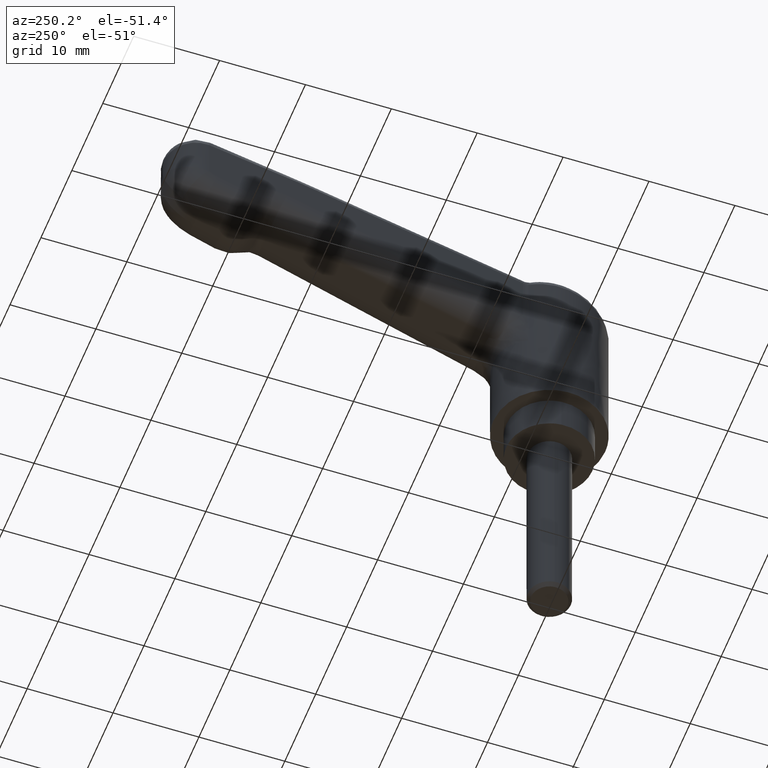
[diagram: clean part render]
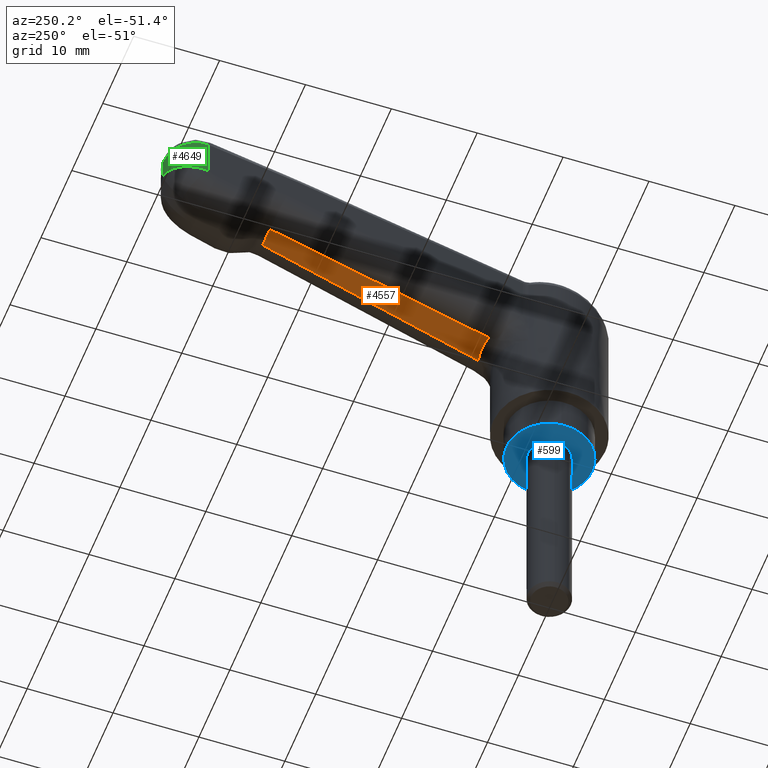
[diagram: same view with three faces highlighted in distinct colors, each labeled with its STEP entity id]
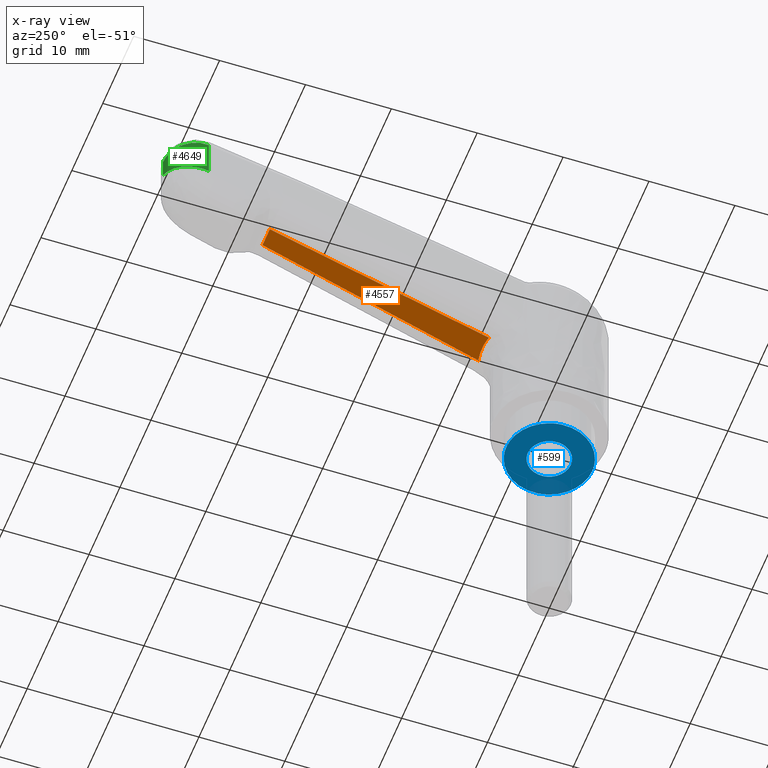
[diagram: x-ray of the same camera — body ghosted, the three highlighted faces saturated]
A machine part, auxiliary view with three faces highlighted in distinct colors.
The next image is the same camera in x-ray (body ghosted, the three faces saturated) — at least one of them is partly hidden behind the body in this view.
Their STEP definitions:

[orange] entity #4557 — the highlighted face is a freeform B-spline surface patch.
#2166=CARTESIAN_POINT('',(7.663890390378490,1.703646324529980,16.050264270958049));
#2167=VERTEX_POINT('',#2166);
#2225=CARTESIAN_POINT('',(32.967611560764503,1.185174163263914,24.950669955959750));
#2226=VERTEX_POINT('',#2225);
#2240=CARTESIAN_POINT('',(7.663890390378490,1.703646324529980,16.050264270958049));
#2241=CARTESIAN_POINT('',(32.967611560764503,1.185174163263914,24.950669955959750));
#2242=QUASI_UNIFORM_CURVE('',1,(#2240,#2241),.UNSPECIFIED.,.F.,.U.);
#2243=EDGE_CURVE('',#2167,#2226,#2242,.T.);
#3010=CARTESIAN_POINT('',(32.967611560764503,-1.185174163264024,24.950669955959750));
#3011=VERTEX_POINT('',#3010);
#3071=CARTESIAN_POINT('',(7.663890390378520,-1.703646324529835,16.050264270958049));
#3072=VERTEX_POINT('',#3071);
#3086=CARTESIAN_POINT('',(32.967611560764503,-1.185174163264024,24.950669955959750));
#3087=CARTESIAN_POINT('',(7.663890390378520,-1.703646324529835,16.050264270958049));
#3088=QUASI_UNIFORM_CURVE('',1,(#3086,#3087),.UNSPECIFIED.,.F.,.U.);
#3089=EDGE_CURVE('',#3011,#3072,#3088,.T.);
#3293=CARTESIAN_POINT('',(32.967611560764503,1.185174163263914,24.950669955959750));
#3294=CARTESIAN_POINT('',(32.967611560764503,-1.185174163264024,24.950669955959750));
#3295=QUASI_UNIFORM_CURVE('',1,(#3293,#3294),.UNSPECIFIED.,.F.,.U.);
#3296=EDGE_CURVE('',#2226,#3011,#3295,.T.);
#3899=CARTESIAN_POINT('',(7.663890390378509,-1.703646324529837,16.050264270958021));
#3900=CARTESIAN_POINT('',(8.012422822868885,1.951564E-014,16.172858099061667));
#3901=CARTESIAN_POINT('',(7.663890390378490,1.703646324529980,16.050264270958049));
#3909=(BOUNDED_CURVE()B_SPLINE_CURVE(2,(#3899,#3900,#3901),.UNSPECIFIED.,.F.,.U.)CURVE()GEOMETRIC_REPRESENTATION_ITEM()QUASI_UNIFORM_CURVE()RATIONAL_B_SPLINE_CURVE((1.0,0.979708234238197,1.0))REPRESENTATION_ITEM(''));
#3910=EDGE_CURVE('',#3072,#2167,#3909,.T.);
#4546=CARTESIAN_POINT('',(6.399969476558571,-1.873840585746379,15.605688992444410));
#4547=CARTESIAN_POINT('',(34.231534963146302,-1.873840585746379,25.395246109807459));
#4548=CARTESIAN_POINT('',(6.399969476558571,1.873840677137234,15.605688992444410));
#4549=CARTESIAN_POINT('',(34.231534963146302,1.873840677137234,25.395246109807459));
#4550=B_SPLINE_SURFACE_WITH_KNOTS('',1,1,((#4546,#4548),(#4547,#4549)),.UNSPECIFIED.,.F.,.F.,.U.,(2,2),(2,2),(0.0,29.503075534396999),(0.0,3.747681262883613),.UNSPECIFIED.);
#4551=ORIENTED_EDGE('',*,*,#3910,.T.);
#4552=ORIENTED_EDGE('',*,*,#2243,.T.);
#4553=ORIENTED_EDGE('',*,*,#3296,.T.);
#4554=ORIENTED_EDGE('',*,*,#3089,.T.);
#4555=EDGE_LOOP('',(#4551,#4552,#4553,#4554));
#4556=FACE_OUTER_BOUND('',#4555,.T.);
#4557=ADVANCED_FACE('',(#4556),#4550,.F.);

[blue] entity #599 — the highlighted face is a freeform B-spline surface patch.
#285=CARTESIAN_POINT('',(-0.152621348980190,-2.495336996045918,0.0));
#286=VERTEX_POINT('',#285);
#292=CARTESIAN_POINT('',(-2.500000000000000,0.0,0.0));
#293=VERTEX_POINT('',#292);
#294=CARTESIAN_POINT('',(-2.500000000000000,0.0,0.0));
#295=CARTESIAN_POINT('',(-2.500000000000000,-2.351765166994094,0.0));
#296=CARTESIAN_POINT('',(-0.152621348980190,-2.495336996045918,0.0));
#304=(BOUNDED_CURVE()B_SPLINE_CURVE(2,(#294,#295,#296),.UNSPECIFIED.,.F.,.U.)B_SPLINE_CURVE_WITH_KNOTS((3,3),(0.500000000000000,0.739332962222185),.UNSPECIFIED.)CURVE()GEOMETRIC_REPRESENTATION_ITEM()RATIONAL_B_SPLINE_CURVE((1.0,0.719603993306343,0.976072041630803))REPRESENTATION_ITEM(''));
#305=EDGE_CURVE('',#293,#286,#304,.T.);
#307=CARTESIAN_POINT('',(0.295085586690003,2.482523815903448,0.0));
#308=VERTEX_POINT('',#307);
#309=CARTESIAN_POINT('',(0.295085586690003,2.482523815903447,0.0));
#310=CARTESIAN_POINT('',(0.148060299178390,2.500000000000000,0.0));
#311=CARTESIAN_POINT('',(0.0,2.500000000000000,0.0));
#312=CARTESIAN_POINT('',(-2.500000000000000,2.500000000000000,0.0));
#313=CARTESIAN_POINT('',(-2.500000000000000,0.0,0.0));
#321=(BOUNDED_CURVE()B_SPLINE_CURVE(2,(#309,#310,#311,#312,#313),.UNSPECIFIED.,.F.,.U.)B_SPLINE_CURVE_WITH_KNOTS((3,2,3),(0.229562473509094,0.250000000000000,0.500000000000000),.UNSPECIFIED.)CURVE()GEOMETRIC_REPRESENTATION_ITEM()RATIONAL_B_SPLINE_CURVE((0.956026754175048,0.976055948325974,1.0,0.707106781186548,1.0))REPRESENTATION_ITEM(''));
#322=EDGE_CURVE('',#308,#293,#321,.T.);
#352=CARTESIAN_POINT('',(2.500000000000000,0.0,0.0));
#353=VERTEX_POINT('',#352);
#354=CARTESIAN_POINT('',(2.500000000000000,0.0,0.0));
#355=CARTESIAN_POINT('',(2.500000000000000,2.220436314791758,0.0));
#356=CARTESIAN_POINT('',(0.295085586690003,2.482523815903447,0.0));
#364=(BOUNDED_CURVE()B_SPLINE_CURVE(2,(#354,#355,#356),.UNSPECIFIED.,.F.,.U.)B_SPLINE_CURVE_WITH_KNOTS((3,3),(0.0,0.229562473509094),.UNSPECIFIED.)CURVE()GEOMETRIC_REPRESENTATION_ITEM()RATIONAL_B_SPLINE_CURVE((1.0,0.731050832860574,0.956026754175048))REPRESENTATION_ITEM(''));
#365=EDGE_CURVE('',#353,#308,#364,.T.);
#367=CARTESIAN_POINT('',(-0.152621348980190,-2.495336996045918,0.0));
#368=CARTESIAN_POINT('',(-0.076381908389921,-2.500000000000000,0.0));
#369=CARTESIAN_POINT('',(0.0,-2.500000000000000,0.0));
#370=CARTESIAN_POINT('',(2.500000000000000,-2.500000000000000,0.0));
#371=CARTESIAN_POINT('',(2.500000000000000,0.0,0.0));
#379=(BOUNDED_CURVE()B_SPLINE_CURVE(2,(#367,#368,#369,#370,#371),.UNSPECIFIED.,.F.,.U.)B_SPLINE_CURVE_WITH_KNOTS((3,2,3),(0.739332962222185,0.750000000000000,1.0),.UNSPECIFIED.)CURVE()GEOMETRIC_REPRESENTATION_ITEM()RATIONAL_B_SPLINE_CURVE((0.976072041630803,0.987502787880205,1.0,0.707106781186548,1.0))REPRESENTATION_ITEM(''));
#380=EDGE_CURVE('',#286,#353,#379,.T.);
#406=CARTESIAN_POINT('',(-5.0,0.0,0.0));
#407=VERTEX_POINT('',#406);
#408=CARTESIAN_POINT('',(-0.392295478703111,-4.984586668660612,-8.604228E-016));
#409=VERTEX_POINT('',#408);
#410=CARTESIAN_POINT('',(-5.0,0.0,0.0));
#411=CARTESIAN_POINT('',(-5.000000000000001,-4.621952458172197,0.0));
#412=CARTESIAN_POINT('',(-0.392295478703111,-4.984586668660612,-8.604228E-016));
#420=(BOUNDED_CURVE()B_SPLINE_CURVE(2,(#410,#411,#412),.UNSPECIFIED.,.F.,.U.)B_SPLINE_CURVE_WITH_KNOTS((3,3),(0.0,0.236331300628373),.UNSPECIFIED.)CURVE()GEOMETRIC_REPRESENTATION_ITEM()RATIONAL_B_SPLINE_CURVE((1.0,0.723120658610345,0.969723356162645))REPRESENTATION_ITEM(''));
#421=EDGE_CURVE('',#407,#409,#420,.T.);
#462=CARTESIAN_POINT('',(0.392295478703110,4.984586668660612,9.159340E-016));
#463=VERTEX_POINT('',#462);
#469=CARTESIAN_POINT('',(0.392295478703110,4.984586668660612,9.159340E-016));
#470=CARTESIAN_POINT('',(0.196450535102529,4.999999999999999,0.0));
#471=CARTESIAN_POINT('',(0.0,5.0,0.0));
#472=CARTESIAN_POINT('',(-5.000000000000001,5.000000000000001,0.0));
#473=CARTESIAN_POINT('',(-5.0,0.0,0.0));
#481=(BOUNDED_CURVE()B_SPLINE_CURVE(2,(#469,#470,#471,#472,#473),.UNSPECIFIED.,.F.,.U.)B_SPLINE_CURVE_WITH_KNOTS((3,2,3),(0.736331300628373,0.750000000000000,1.0),.UNSPECIFIED.)CURVE()GEOMETRIC_REPRESENTATION_ITEM()RATIONAL_B_SPLINE_CURVE((0.969723356162645,0.983986122576203,1.0,0.707106781186548,1.0))REPRESENTATION_ITEM(''));
#482=EDGE_CURVE('',#463,#407,#481,.T.);
#505=CARTESIAN_POINT('',(5.0,0.0,0.0));
#506=VERTEX_POINT('',#505);
#507=CARTESIAN_POINT('',(-0.392295478703111,-4.984586668660612,-8.604228E-016));
#508=CARTESIAN_POINT('',(-0.196450535102529,-5.000000000000001,0.0));
#509=CARTESIAN_POINT('',(0.0,-5.0,0.0));
#510=CARTESIAN_POINT('',(5.000000000000001,-5.000000000000001,0.0));
#511=CARTESIAN_POINT('',(5.0,0.0,0.0));
#519=(BOUNDED_CURVE()B_SPLINE_CURVE(2,(#507,#508,#509,#510,#511),.UNSPECIFIED.,.F.,.U.)B_SPLINE_CURVE_WITH_KNOTS((3,2,3),(0.236331300628373,0.250000000000000,0.500000000000000),.UNSPECIFIED.)CURVE()GEOMETRIC_REPRESENTATION_ITEM()RATIONAL_B_SPLINE_CURVE((0.969723356162645,0.983986122576203,1.0,0.707106781186548,1.0))REPRESENTATION_ITEM(''));
#520=EDGE_CURVE('',#409,#506,#519,.T.);
#522=CARTESIAN_POINT('',(5.0,0.0,0.0));
#523=CARTESIAN_POINT('',(5.000000000000001,4.621952458172169,0.0));
#524=CARTESIAN_POINT('',(0.392295478703110,4.984586668660612,9.159340E-016));
#532=(BOUNDED_CURVE()B_SPLINE_CURVE(2,(#522,#523,#524),.UNSPECIFIED.,.F.,.U.)B_SPLINE_CURVE_WITH_KNOTS((3,3),(0.500000000000000,0.736331300628372),.UNSPECIFIED.)CURVE()GEOMETRIC_REPRESENTATION_ITEM()RATIONAL_B_SPLINE_CURVE((1.0,0.723120658610346,0.969723356162643))REPRESENTATION_ITEM(''));
#533=EDGE_CURVE('',#506,#463,#532,.T.);
#582=CARTESIAN_POINT('',(-5.499499980618060,5.497973763634227,0.0));
#583=CARTESIAN_POINT('',(5.499500248838961,5.497973763634227,0.0));
#584=CARTESIAN_POINT('',(-5.499499980618060,-5.497974031855129,0.0));
#585=CARTESIAN_POINT('',(5.499500248838961,-5.497974031855129,0.0));
#586=B_SPLINE_SURFACE_WITH_KNOTS('',1,1,((#582,#584),(#583,#585)),.UNSPECIFIED.,.F.,.F.,.U.,(2,2),(2,2),(0.0,10.999000229457019),(0.0,10.995947795489361),.UNSPECIFIED.);
#587=ORIENTED_EDGE('',*,*,#482,.F.);
#588=ORIENTED_EDGE('',*,*,#533,.F.);
#589=ORIENTED_EDGE('',*,*,#520,.F.);
#590=ORIENTED_EDGE('',*,*,#421,.F.);
#591=EDGE_LOOP('',(#587,#588,#589,#590));
#592=FACE_OUTER_BOUND('',#591,.T.);
#593=ORIENTED_EDGE('',*,*,#305,.T.);
#594=ORIENTED_EDGE('',*,*,#380,.T.);
#595=ORIENTED_EDGE('',*,*,#365,.T.);
#596=ORIENTED_EDGE('',*,*,#322,.T.);
#597=EDGE_LOOP('',(#593,#594,#595,#596));
#598=FACE_BOUND('',#597,.T.);
#599=ADVANCED_FACE('',(#592,#598),#586,.T.);

[green] entity #4649 — the highlighted face is a freeform B-spline surface patch.
#2527=CARTESIAN_POINT('',(41.081942628878487,3.999144946134395,28.444855264174748));
#2528=VERTEX_POINT('',#2527);
#2624=CARTESIAN_POINT('',(45.0,-0.000015641485440,30.662410843262951));
#2625=VERTEX_POINT('',#2624);
#2626=CARTESIAN_POINT('',(45.0,-0.000015641485440,30.662410843262951));
#2627=CARTESIAN_POINT('',(44.999999944226182,0.031270363513726,30.648863676924631));
#2628=CARTESIAN_POINT('',(44.999625191813649,0.063235898334178,30.635022291434819));
#2629=CARTESIAN_POINT('',(44.998121765757482,0.126570559447724,30.607593884920650));
#2630=CARTESIAN_POINT('',(44.994739310967070,0.221487009446116,30.566482515123280));
#2631=CARTESIAN_POINT('',(44.987987991729263,0.316130902287121,30.525454482206840));
#2632=CARTESIAN_POINT('',(44.970002204119112,0.505039079579945,30.443470395197799));
#2633=CARTESIAN_POINT('',(44.952011920446822,0.630631082778202,30.388841235473489));
#2634=CARTESIAN_POINT('',(44.904059008516072,0.880003725738597,30.279870821649791));
#2635=CARTESIAN_POINT('',(44.874214354359211,1.003256512487470,30.225760667869281));
#2636=CARTESIAN_POINT('',(44.820675478685231,1.185923343119937,30.144998604780259));
#2637=CARTESIAN_POINT('',(44.801364992810328,1.246443018129408,30.118145245422010));
#2638=CARTESIAN_POINT('',(44.759793840894112,1.366726586173039,30.064547555641980));
#2639=CARTESIAN_POINT('',(44.737512017772588,1.426528994151118,30.037785460575751));
#2640=CARTESIAN_POINT('',(44.619464600570190,1.721645473847278,29.905065341150308));
#2641=CARTESIAN_POINT('',(44.503453970181802,1.946912273030040,29.801670208677340));
#2642=CARTESIAN_POINT('',(44.297263637606541,2.268071049019407,29.649449500367862));
#2643=CARTESIAN_POINT('',(44.223139444490528,2.372317655505154,29.599191626088022));
#2644=CARTESIAN_POINT('',(44.063726305804472,2.574896832439544,29.499447960423169));
#2645=CARTESIAN_POINT('',(43.979003091576381,2.672491680030416,29.450322935054480));
#2646=CARTESIAN_POINT('',(43.799878850350147,2.859605609482824,29.353604732789879));
#2647=CARTESIAN_POINT('',(43.705999978641287,2.948566244760232,29.306297566053580));
#2648=CARTESIAN_POINT('',(43.510700966357739,3.116545378644477,29.213958579653671));
#2649=CARTESIAN_POINT('',(43.409144402823351,3.195707067431789,29.168853554509369));
#2650=CARTESIAN_POINT('',(43.198250528858033,3.344280440373045,29.080534695910249));
#2651=CARTESIAN_POINT('',(43.088913608011808,3.413692982207298,29.037321391366859));
#2652=CARTESIAN_POINT('',(42.918947801124837,3.510236602551565,28.973770906799150));
#2653=CARTESIAN_POINT('',(42.861297535462043,3.541153199534542,28.952799238866671));
#2654=CARTESIAN_POINT('',(42.743965484566672,3.600385798941233,28.911257011702851));
#2655=CARTESIAN_POINT('',(42.684210307347229,3.628729592078583,28.890663284032499));
#2656=CARTESIAN_POINT('',(42.502998506691632,3.709224023527342,28.829841007762589));
#2657=CARTESIAN_POINT('',(42.378935689239647,3.757106713284005,28.790356465185049));
#2658=CARTESIAN_POINT('',(42.128105289536627,3.839881812214760,28.714407864174490));
#2659=CARTESIAN_POINT('',(42.001070543470327,3.874931699128879,28.677843381937969));
#2660=CARTESIAN_POINT('',(41.615248672236561,3.961162122712469,28.571923086602730));
#2661=CARTESIAN_POINT('',(41.351786986550842,3.993615612637141,28.506320143834628));
#2662=CARTESIAN_POINT('',(41.081942628878487,3.999144946134395,28.444855264174748));
#2663=B_SPLINE_CURVE_WITH_KNOTS('',3,(#2626,#2627,#2628,#2629,#2630,#2631,#2632,#2633,#2634,#2635,#2636,#2637,#2638,#2639,#2640,#2641,#2642,#2643,#2644,#2645,#2646,#2647,#2648,#2649,#2650,#2651,#2652,#2653,#2654,#2655,#2656,#2657,#2658,#2659,#2660,#2661,#2662),.UNSPECIFIED.,.F.,.U.,(4,2,1,2,2,2,2,2,2,2,2,2,2,2,2,2,2,2,4),(0.0,0.015623837191080,0.031248837191079,0.062498837191079,0.124998837191079,0.187498837191078,0.218748837191078,0.249998837191078,0.374998837191080,0.437498837191080,0.499998837191081,0.562498837191082,0.624998837191082,0.687498837191083,0.718748837191083,0.749998837191083,0.812498837191083,0.874998837191083,0.999998837191080),.UNSPECIFIED.);
#2664=EDGE_CURVE('',#2625,#2528,#2663,.T.);
#4079=CARTESIAN_POINT('',(45.0,-0.000015641485440,33.000003780693703));
#4080=VERTEX_POINT('',#4079);
#4094=CARTESIAN_POINT('',(41.081942628878487,3.999144946134395,32.970756681665392));
#4095=VERTEX_POINT('',#4094);
#4096=CARTESIAN_POINT('',(41.081942628878487,3.999144946134395,32.970756681665392));
#4097=CARTESIAN_POINT('',(41.164203855452207,3.995992851749290,32.984655344231399));
#4098=CARTESIAN_POINT('',(41.330329775980310,3.989627221146135,33.012723587425249));
#4099=CARTESIAN_POINT('',(41.581728036619673,3.960021267220378,33.047958540493141));
#4100=CARTESIAN_POINT('',(41.836325152022127,3.914541547823718,33.078729646879452));
#4101=CARTESIAN_POINT('',(42.092931649155702,3.850851637300519,33.104475412364053));
#4102=CARTESIAN_POINT('',(42.350134843764422,3.768536186689408,33.125385936110163));
#4103=CARTESIAN_POINT('',(42.606432692499162,3.666756752090917,33.141275330609133));
#4104=CARTESIAN_POINT('',(42.987849811246733,3.483644238912743,33.158466288653877));
#4105=CARTESIAN_POINT('',(43.562688273557832,3.114009911258649,33.157878921903233));
#4106=CARTESIAN_POINT('',(44.131830103060160,2.536949188803796,33.146143328880910));
#4107=CARTESIAN_POINT('',(44.579281836269288,1.834135787861193,33.112793957106817));
#4108=CARTESIAN_POINT('',(44.822670029293612,1.236627673038210,33.066571774754159));
#4109=CARTESIAN_POINT('',(44.946282666486198,0.696306833667371,33.027256562035362));
#4110=CARTESIAN_POINT('',(44.993324885101529,0.317235710012089,33.005500051009427));
#4111=CARTESIAN_POINT('',(44.998000947649253,0.094994267653096,33.001649794609818));
#4112=CARTESIAN_POINT('',(45.0,-0.000015641485440,33.000003780693703));
#4113=B_SPLINE_CURVE_WITH_KNOTS('',3,(#4096,#4097,#4098,#4099,#4100,#4101,#4102,#4103,#4104,#4105,#4106,#4107,#4108,#4109,#4110,#4111,#4112),.UNSPECIFIED.,.F.,.U.,(4,1,1,1,1,1,1,1,1,1,1,1,1,1,4),(0.0,0.040324118676637,0.081434250541401,0.123350469669858,0.166091712598150,0.209675838715303,0.254119689516424,0.299439146249360,0.414111148402849,0.582549392941568,0.686070816714058,0.815573134233637,0.892629747616208,0.954098399403441,1.000000000000000),.UNSPECIFIED.);
#4114=EDGE_CURVE('',#4095,#4080,#4113,.T.);
#4616=CARTESIAN_POINT('',(45.0,-0.000015641485440,30.662410843262951));
#4617=CARTESIAN_POINT('',(45.0,-0.000015641485440,33.000003780693703));
#4618=QUASI_UNIFORM_CURVE('',1,(#4616,#4617),.UNSPECIFIED.,.F.,.U.);
#4619=EDGE_CURVE('',#2625,#4080,#4618,.T.);
#4625=CARTESIAN_POINT('',(41.047040691922717,3.999707745613150,28.327048267052941));
#4626=CARTESIAN_POINT('',(41.047040691922717,3.999707745613150,33.277887321096919));
#4627=CARTESIAN_POINT('',(45.188875506040404,3.950995683145489,28.327048267052938));
#4628=CARTESIAN_POINT('',(45.188875506040404,3.950995683145489,33.277887321096919));
#4629=CARTESIAN_POINT('',(44.995645167207442,-0.186616010648606,28.327048267052941));
#4630=CARTESIAN_POINT('',(44.995645167207442,-0.186616010648606,33.277887321096919));
#4638=(BOUNDED_SURFACE()B_SPLINE_SURFACE(1,2,((#4625,#4627,#4629),(#4626,#4628,#4630)),.UNSPECIFIED.,.F.,.F.,.U.)B_SPLINE_SURFACE_WITH_KNOTS((2,2),(3,3),(0.0,4.950839054043982),(0.0,6.791597059353683),.UNSPECIFIED.)GEOMETRIC_REPRESENTATION_ITEM()RATIONAL_B_SPLINE_SURFACE(((1.0,0.694658370458997,1.0),(1.0,0.694658370458997,1.0)))REPRESENTATION_ITEM('')SURFACE());
#4639=ORIENTED_EDGE('',*,*,#4619,.F.);
#4640=ORIENTED_EDGE('',*,*,#2664,.T.);
#4641=CARTESIAN_POINT('',(41.081942628878487,3.999144946134395,32.970756681665392));
#4642=CARTESIAN_POINT('',(41.081942628878487,3.999144946134395,28.444855264174748));
#4643=QUASI_UNIFORM_CURVE('',1,(#4641,#4642),.UNSPECIFIED.,.F.,.U.);
#4644=EDGE_CURVE('',#4095,#2528,#4643,.T.);
#4645=ORIENTED_EDGE('',*,*,#4644,.F.);
#4646=ORIENTED_EDGE('',*,*,#4114,.T.);
#4647=EDGE_LOOP('',(#4639,#4640,#4645,#4646));
#4648=FACE_OUTER_BOUND('',#4647,.T.);
#4649=ADVANCED_FACE('',(#4648),#4638,.T.);